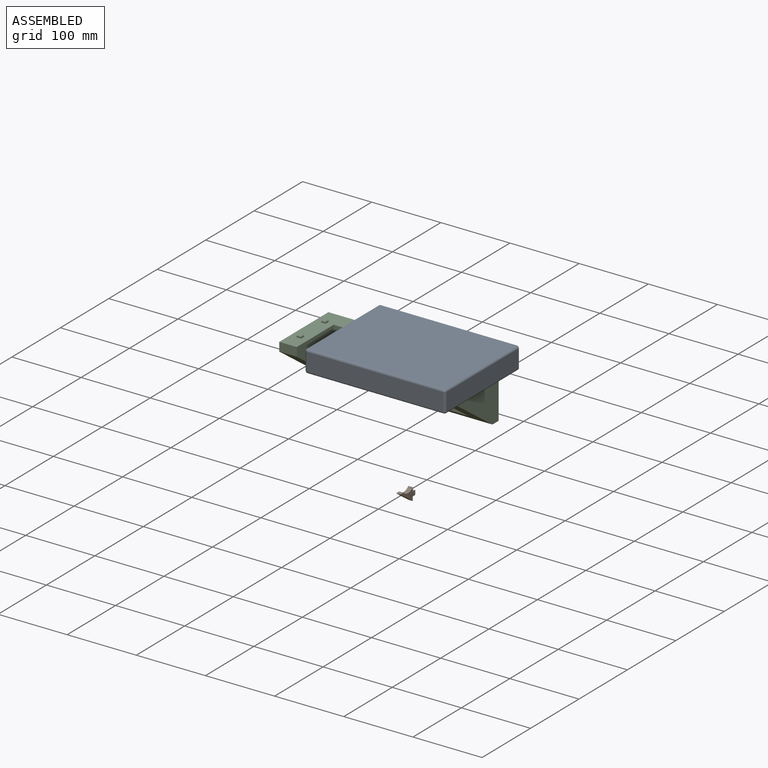
[diagram: assembled view]
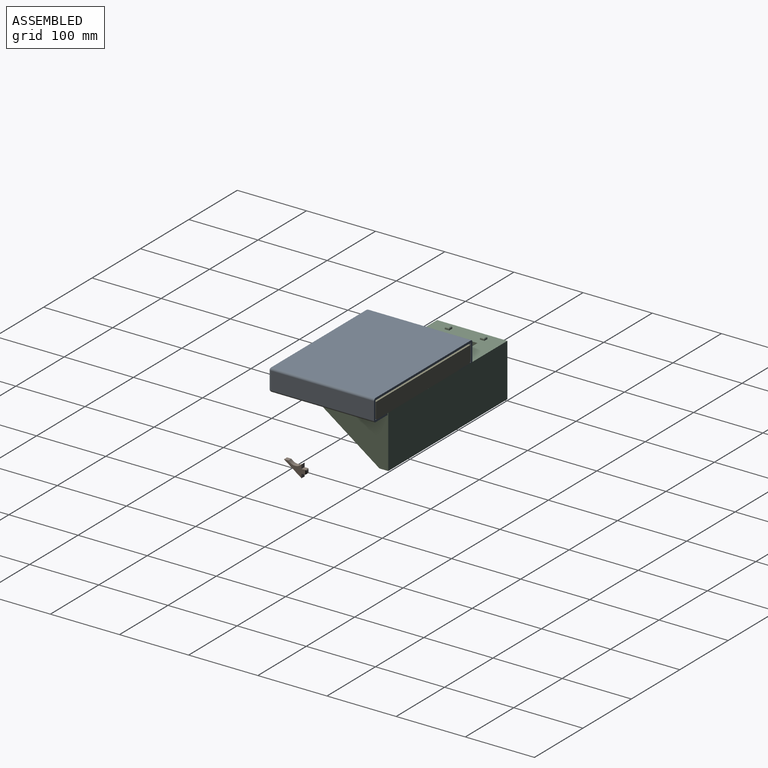
[diagram: assembled view, second angle]
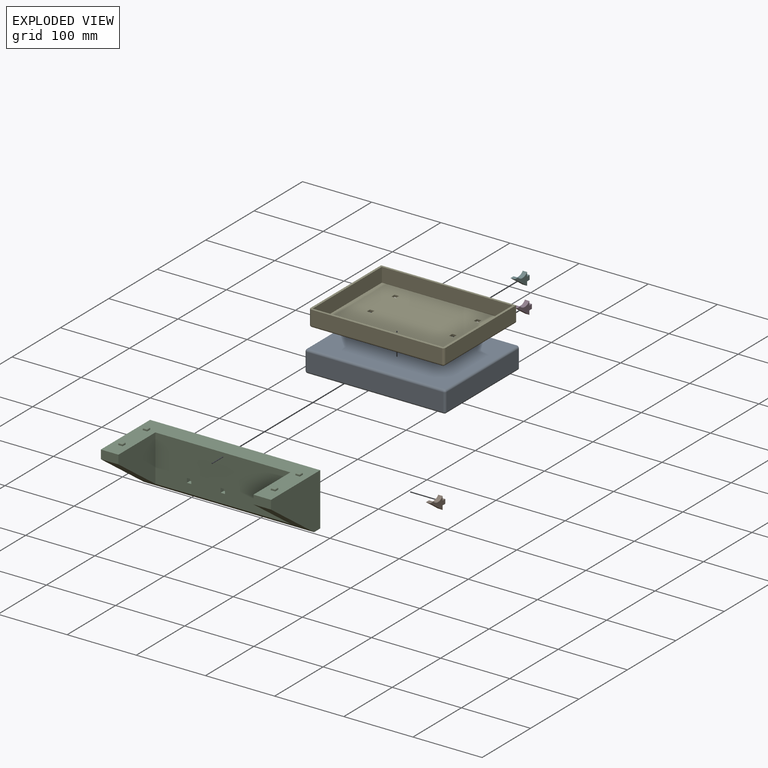
[diagram: exploded view]
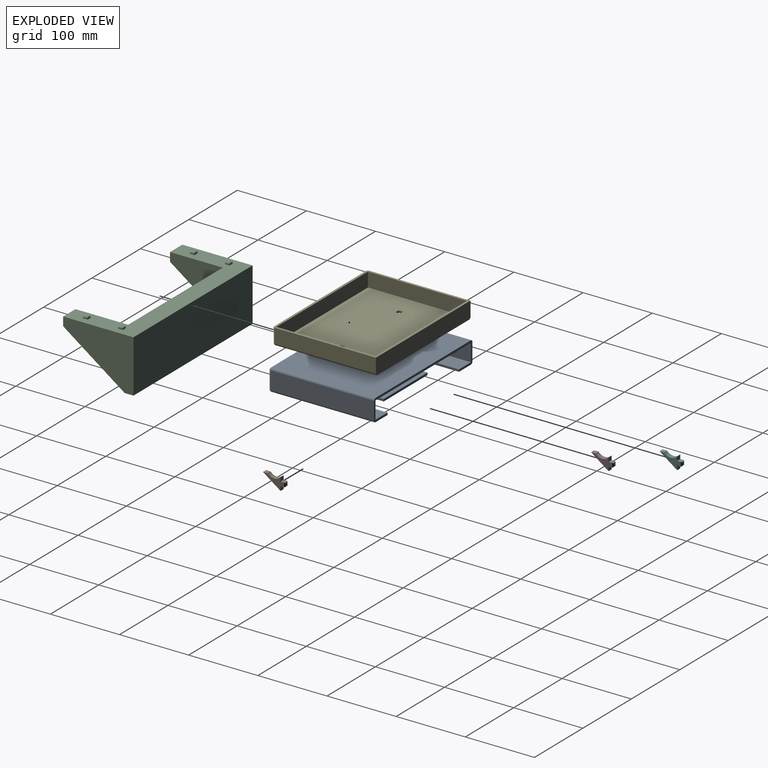
[diagram: exploded view, second angle]
ASSEMBLY  parts=6 mates=4
PART A: 30 faces, bbox 203.2x152.4x31.8 mm
  f0: plane 196.85x149.23mm, normal (0,0,-1), area 21269.2mm2, adj f6,f11,f12,f13,f14,f15,f16,f17
  f1: plane 196.85x149.23mm, normal (0,0,1), area 21269.2mm2, adj f6,f7,f9,f10,f11,f12,f13,f14
  f2: plane 149.23x25.4mm, normal (1,0,0), area 3790.3mm2, adj f6,f20,f26,f29
  f3: plane 196.85x149.23mm, normal (0,0,1), area 29374.9mm2, adj f6,f23,f27,f29
  f4: plane 149.23x25.4mm, normal (-1,0,0), area 3790.3mm2, adj f6,f18,f22,f23
  f5: plane 196.85x25.4mm, normal (0,-1,0), area 5000mm2, adj f21,f22,f26,f27
  f6: plane 203.2x31.75mm, normal (0,1,0), area 974.1mm2, adj f0,f1,f2,f3,f4,f7,f8,f9
  f7: plane 149.23x25.4mm, normal (-1,0,0), area 3790.3mm2, adj f1,f6,f8,f10
  f8: plane 196.85x149.23mm, normal (0,0,-1), area 29374.9mm2, adj f6,f7,f9,f10
  f9: plane 149.23x25.4mm, normal (1,0,0), area 3790.3mm2, adj f1,f6,f8,f10
  f10: plane 196.85x25.4mm, normal (0,1,0), area 5000mm2, adj f1,f7,f8,f9
  f11: plane 101.6x3.18mm, normal (-1,0,0), area 322.6mm2, adj f0,f1,f6,f12
  f12: plane 28.58x3.18mm, normal (0,1,0), area 90.7mm2, adj f0,f1,f11,f13
  f13: plane 76.2x3.18mm, normal (1,0,0), area 241.9mm2, adj f0,f1,f12,f14
  f14: plane 90.53x3.18mm, normal (0,1,0), area 287.4mm2, adj f0,f1,f13,f16
  f15: plane 101.6x3.18mm, normal (1,0,0), area 322.6mm2, adj f0,f1,f6,f17
  f16: plane 76.2x3.18mm, normal (-1,0,0), area 241.9mm2, adj f0,f1,f14,f17
  f17: plane 28.58x3.18mm, normal (0,1,0), area 90.7mm2, adj f0,f1,f15,f16
  f18: cylinder r=3.17mm len=149.23mm, axis (0,1,0), area 744.2mm2, adj f0,f4,f6,f19
  f19: sphere r=3.17mm, area 15.8mm2, adj f18,f21,f22
  f20: cylinder r=3.17mm len=149.23mm, axis (0,-1,0), area 744.2mm2, adj f0,f2,f6,f24
  f21: cylinder r=3.17mm len=196.85mm, axis (-1,0,0), area 981.7mm2, adj f0,f5,f19,f24
  f22: cylinder r=3.17mm len=25.4mm, axis (0,0,1), area 126.7mm2, adj f4,f5,f19,f25
  f23: cylinder r=3.17mm len=149.23mm, axis (0,-1,0), area 744.2mm2, adj f3,f4,f6,f25
  f24: sphere r=3.17mm, area 15.8mm2, adj f20,f21,f26
  f25: sphere r=3.17mm, area 15.8mm2, adj f22,f23,f27
  f26: cylinder r=3.17mm len=25.4mm, axis (0,0,-1), area 126.7mm2, adj f2,f5,f24,f28
  f27: cylinder r=3.17mm len=196.85mm, axis (1,0,0), area 981.7mm2, adj f3,f5,f25,f28
  f28: sphere r=3.17mm, area 15.8mm2, adj f26,f27,f29
  f29: cylinder r=3.17mm len=149.23mm, axis (0,1,0), area 744.2mm2, adj f2,f3,f6,f28
PART B: 14 faces, bbox 6.4x31.8x18.1 mm
  f0: plane 6.35x5.9mm, normal (0,1,0), area 37.4mm2, adj f2,f5,f6,f7
  f1: plane 6.35x6.35mm, normal (0,0,1), area 40.3mm2, adj f2,f4,f5,f6
  f2: plane 25.4x18.14mm, normal (0,-0.58,-0.81), area 198.2mm2, adj f0,f1,f5,f6
  f3: plane 6.35x5.9mm, normal (0,1,0), area 37.4mm2, adj f4,f5,f6,f8
  f4: cylinder r=12.7mm len=19.05mm, axis (-1,0,0), area 136.8mm2, adj f1,f3,f5,f6
  f5: plane 30.16x18.14mm, normal (1,0,0), area 203.9mm2, adj f0,f1,f2,f3,f4,f7,f8,f10
  f6: plane 30.16x18.14mm, normal (-1,0,0), area 203.9mm2, adj f0,f1,f2,f3,f4,f7,f8,f13
  f7: plane 6.35x4.76mm, normal (0,0,-1), area 30.2mm2, adj f0,f5,f6,f11
  f8: plane 6.35x4.76mm, normal (0,0,1), area 30.2mm2, adj f3,f5,f6,f12
  f9: plane 3.18x3.18mm, normal (0,1,0), area 10.1mm2, adj f10,f11,f12,f13
  f10: cylinder r=1.59mm len=6.35mm, axis (0,0,1), area 13mm2, adj f5,f9,f11,f12
  f11: cylinder r=1.59mm len=6.35mm, axis (1,0,0), area 13mm2, adj f7,f9,f10,f13
  f12: cylinder r=1.59mm len=6.35mm, axis (-1,0,0), area 13mm2, adj f8,f9,f10,f13
  f13: cylinder r=1.59mm len=6.35mm, axis (0,0,-1), area 13mm2, adj f6,f9,f11,f12
PART C: 62 faces, bbox 246.1x101.6x79.4 mm
  f0: plane 246.05x101.6mm, normal (0,0,1), area 9959.3mm2, adj f1,f2,f3,f4,f5,f6,f7,f8
  f1: plane 195.25x67.13mm, normal (0,-1,0), area 12985.9mm2, adj f0,f3,f4,f10,f11,f12,f13,f14
  f2: plane 25.4x12.7mm, normal (0,-1,0), area 322.6mm2, adj f0,f4,f8,f10
  f3: plane 76.2x67.13mm, normal (-1,0,0), area 3041.5mm2, adj f0,f1,f7,f10
  f4: plane 76.2x67.13mm, normal (1,0,0), area 3041.5mm2, adj f0,f1,f2,f10
  f5: plane 246.05x76.2mm, normal (0,1,0), area 18749mm2, adj f0,f6,f8,f9
  f6: plane 101.6x76.2mm, normal (1,0,0), area 4919.3mm2, adj f0,f5,f7,f9,f10
  f7: plane 25.4x12.7mm, normal (0,-1,0), area 322.6mm2, adj f0,f3,f6,f10
  f8: plane 101.6x76.2mm, normal (-1,0,0), area 4919.3mm2, adj f0,f2,f5,f9,f10
  f9: plane 246.05x12.7mm, normal (0,0,-1), area 3124.8mm2, adj f5,f6,f8,f10
  f10: plane 246.05x88.9mm, normal (0,-0.58,-0.81), area 8597.2mm2, adj f1,f2,f3,f4,f6,f7,f8,f9
  f11: plane 6.35x6.35mm, normal (-1,0,0), area 40.3mm2, adj f1,f12,f14,f15
  f12: plane 6.35x6.35mm, normal (0,0,-1), area 40.3mm2, adj f1,f11,f13,f15
  f13: plane 6.35x6.35mm, normal (1,0,0), area 40.3mm2, adj f1,f12,f14,f15
  f14: plane 6.35x6.35mm, normal (0,0,1), area 40.3mm2, adj f1,f11,f13,f15
  f15: plane 6.35x6.35mm, normal (0,-1,0), area 40.3mm2, adj f11,f12,f13,f14
  f16: plane 6.35x6.35mm, normal (-1,0,0), area 40.3mm2, adj f1,f17,f19,f20
  f17: plane 6.35x6.35mm, normal (0,0,-1), area 40.3mm2, adj f1,f16,f18,f20
  f18: plane 6.35x6.35mm, normal (1,0,0), area 40.3mm2, adj f1,f17,f19,f20
  f19: plane 6.35x6.35mm, normal (0,0,1), area 40.3mm2, adj f1,f16,f18,f20
  f20: plane 6.35x6.35mm, normal (0,-1,0), area 40.3mm2, adj f16,f17,f18,f19
  f21: plane 6.35x6.35mm, normal (1,0,0), area 40.3mm2, adj f1,f22,f24,f25
  f22: plane 6.35x6.35mm, normal (0,0,1), area 40.3mm2, adj f1,f21,f23,f25
  f23: plane 6.35x6.35mm, normal (-1,0,0), area 40.3mm2, adj f1,f22,f24,f25
  f24: plane 6.35x6.35mm, normal (0,0,-1), area 40.3mm2, adj f1,f21,f23,f25
  f25: plane 6.35x6.35mm, normal (0,-1,0), area 40.3mm2, adj f21,f22,f23,f24
  f26: plane 6.35x1.59mm, normal (1,0,0), area 10.1mm2, adj f0,f27,f29,f59
  f27: plane 6.35x1.59mm, normal (0,1,0), area 10.1mm2, adj f0,f26,f28,f61
  f28: plane 6.35x1.59mm, normal (-1,0,0), area 10.1mm2, adj f0,f27,f29,f60
  f29: plane 6.35x1.59mm, normal (0,-1,0), area 10.1mm2, adj f0,f26,f28,f58
  f30: plane 3.18x3.18mm, normal (0,0,1), area 10.1mm2, adj f58,f59,f60,f61
  f31: plane 6.35x1.59mm, normal (1,0,0), area 10.1mm2, adj f0,f32,f34,f54
  f32: plane 6.35x1.59mm, normal (0,1,0), area 10.1mm2, adj f0,f31,f33,f56
  f33: plane 6.35x1.59mm, normal (-1,0,0), area 10.1mm2, adj f0,f32,f34,f57
  f34: plane 6.35x1.59mm, normal (0,-1,0), area 10.1mm2, adj f0,f31,f33,f55
  f35: plane 3.18x3.18mm, normal (0,0,1), area 10.1mm2, adj f54,f55,f56,f57
  f36: plane 6.35x1.59mm, normal (-1,0,0), area 10.1mm2, adj f0,f37,f39,f47
  f37: plane 6.35x1.59mm, normal (0,-1,0), area 10.1mm2, adj f0,f36,f38,f49
  f38: plane 6.35x1.59mm, normal (1,0,0), area 10.1mm2, adj f0,f37,f39,f48
  f39: plane 6.35x1.59mm, normal (0,1,0), area 10.1mm2, adj f0,f36,f38,f46
  f40: plane 3.18x3.18mm, normal (0,0,1), area 10.1mm2, adj f46,f47,f48,f49
  f41: plane 6.35x1.59mm, normal (-1,0,0), area 10.1mm2, adj f0,f42,f44,f51
  f42: plane 6.35x1.59mm, normal (0,-1,0), area 10.1mm2, adj f0,f41,f43,f53
  f43: plane 6.35x1.59mm, normal (1,0,0), area 10.1mm2, adj f0,f42,f44,f52
  f44: plane 6.35x1.59mm, normal (0,1,0), area 10.1mm2, adj f0,f41,f43,f50
  f45: plane 3.18x3.18mm, normal (0,0,1), area 10.1mm2, adj f50,f51,f52,f53
  f46: cylinder r=1.59mm len=6.35mm, axis (1,0,0), area 13mm2, adj f39,f40,f47,f48
  f47: cylinder r=1.59mm len=6.35mm, axis (0,1,0), area 13mm2, adj f36,f40,f46,f49
  f48: cylinder r=1.59mm len=6.35mm, axis (0,-1,0), area 13mm2, adj f38,f40,f46,f49
  f49: cylinder r=1.59mm len=6.35mm, axis (-1,0,0), area 13mm2, adj f37,f40,f47,f48
  f50: cylinder r=1.59mm len=6.35mm, axis (1,0,0), area 13mm2, adj f44,f45,f51,f52
  f51: cylinder r=1.59mm len=6.35mm, axis (0,1,0), area 13mm2, adj f41,f45,f50,f53
  f52: cylinder r=1.59mm len=6.35mm, axis (0,-1,0), area 13mm2, adj f43,f45,f50,f53
  f53: cylinder r=1.59mm len=6.35mm, axis (-1,0,0), area 13mm2, adj f42,f45,f51,f52
  f54: cylinder r=1.59mm len=6.35mm, axis (0,-1,0), area 13mm2, adj f31,f35,f55,f56
  f55: cylinder r=1.59mm len=6.35mm, axis (-1,0,0), area 13mm2, adj f34,f35,f54,f57
  f56: cylinder r=1.59mm len=6.35mm, axis (1,0,0), area 13mm2, adj f32,f35,f54,f57
  f57: cylinder r=1.59mm len=6.35mm, axis (0,1,0), area 13mm2, adj f33,f35,f55,f56
  f58: cylinder r=1.59mm len=6.35mm, axis (-1,0,0), area 13mm2, adj f29,f30,f59,f60
  f59: cylinder r=1.59mm len=6.35mm, axis (0,-1,0), area 13mm2, adj f26,f30,f58,f61
  f60: cylinder r=1.59mm len=6.35mm, axis (0,1,0), area 13mm2, adj f28,f30,f58,f61
  f61: cylinder r=1.59mm len=6.35mm, axis (1,0,0), area 13mm2, adj f27,f30,f59,f60
PART D: same geometry as B
PART E: 34 faces, bbox 195.3x149.2x23.8 mm
  f0: plane 188.9x142.88mm, normal (0,0,1), area 26827.8mm2, adj f7,f8,f9,f10,f11,f12,f13,f14
  f1: plane 188.9x146.05mm, normal (0,0,-1), area 27427.5mm2, adj f6,f11,f12,f13,f14,f15,f16,f17
  f2: plane 195.25x149.23mm, normal (0,0,1), area 2142.8mm2, adj f3,f4,f5,f6,f7,f8,f9,f10
  f3: plane 146.05x20.65mm, normal (1,0,0), area 3016mm2, adj f2,f6,f31,f33
  f4: plane 146.05x20.65mm, normal (-1,0,0), area 3016mm2, adj f2,f6,f27,f28
  f5: plane 188.9x20.65mm, normal (0,-1,0), area 3900.8mm2, adj f2,f28,f30,f31
  f6: plane 195.25x23.83mm, normal (0,1,0), area 4647.5mm2, adj f1,f2,f3,f4,f27,f33
  f7: plane 142.88x20.65mm, normal (-1,0,0), area 2950.4mm2, adj f0,f2,f9,f10
  f8: plane 142.88x20.65mm, normal (1,0,0), area 2950.4mm2, adj f0,f2,f9,f10
  f9: plane 188.9x20.65mm, normal (0,1,0), area 3900.8mm2, adj f0,f2,f7,f8
  f10: plane 188.9x20.65mm, normal (0,-1,0), area 3900.8mm2, adj f0,f2,f7,f8
  f11: plane 6.35x3.18mm, normal (0,-1,0), area 20.2mm2, adj f0,f1,f12,f14
  f12: plane 6.35x3.18mm, normal (-1,0,0), area 20.2mm2, adj f0,f1,f11,f13
  f13: plane 6.35x3.18mm, normal (0,1,0), area 20.2mm2, adj f0,f1,f12,f14
  f14: plane 6.35x3.18mm, normal (1,0,0), area 20.2mm2, adj f0,f1,f11,f13
  f15: plane 6.35x3.18mm, normal (0,-1,0), area 20.2mm2, adj f0,f1,f16,f17
  f16: plane 6.35x3.18mm, normal (1,0,0), area 20.2mm2, adj f0,f1,f15,f18
  f17: plane 6.35x3.18mm, normal (-1,0,0), area 20.2mm2, adj f0,f1,f15,f18
  f18: plane 6.35x3.18mm, normal (0,1,0), area 20.2mm2, adj f0,f1,f16,f17
  f19: plane 6.35x3.18mm, normal (0,-1,0), area 20.2mm2, adj f0,f1,f20,f21
  f20: plane 6.35x3.18mm, normal (1,0,0), area 20.2mm2, adj f0,f1,f19,f22
  f21: plane 6.35x3.18mm, normal (-1,0,0), area 20.2mm2, adj f0,f1,f19,f22
  f22: plane 6.35x3.18mm, normal (0,1,0), area 20.2mm2, adj f0,f1,f20,f21
  f23: plane 6.35x3.18mm, normal (0,1,0), area 20.2mm2, adj f0,f1,f24,f25
  f24: plane 6.35x3.18mm, normal (-1,0,0), area 20.2mm2, adj f0,f1,f23,f26
  f25: plane 6.35x3.18mm, normal (1,0,0), area 20.2mm2, adj f0,f1,f23,f26
  f26: plane 6.35x3.18mm, normal (0,-1,0), area 20.2mm2, adj f0,f1,f24,f25
  f27: cylinder r=3.17mm len=146.05mm, axis (0,-1,0), area 728.4mm2, adj f1,f4,f6,f29
  f28: cylinder r=3.17mm len=20.65mm, axis (0,0,1), area 103mm2, adj f2,f4,f5,f29
  f29: sphere r=3.17mm, area 15.8mm2, adj f27,f28,f30
  f30: cylinder r=3.17mm len=188.9mm, axis (-1,0,0), area 942.1mm2, adj f1,f5,f29,f32
  f31: cylinder r=3.17mm len=20.65mm, axis (0,0,-1), area 103mm2, adj f2,f3,f5,f32
  f32: sphere r=3.17mm, area 15.8mm2, adj f30,f31,f33
  f33: cylinder r=3.17mm len=146.05mm, axis (0,1,0), area 728.4mm2, adj f1,f3,f6,f32
PART F: same geometry as B
PLACE A t=(-19.07,174.59,72.1)mm
PLACE B t=(-130.05,57.48,1.19)mm
PLACE C t=(-319.89,174.59,74.47)mm fixed
PLACE D t=(-225.44,174.59,74.93)mm
PLACE E t=(-23.04,174.59,98.3)mm
PLACE F t=(-274.21,174.59,74.93)mm
MATE fastened D.f9 <-> C.f20  axis (0,1,0) through (-171.47,155.54,24.13)mm
MATE slider A.f10 <-> E.f5  axis (0,-1,0) through (-120.67,25.36,87.97)mm
MATE fastened F.f9 <-> C.f25  axis (0,1,0) through (-220.24,155.54,24.13)mm
MATE fastened C.f0 <-> E.f1  axis (0,0,1) through (-64.32,98.39,74.47)mm
